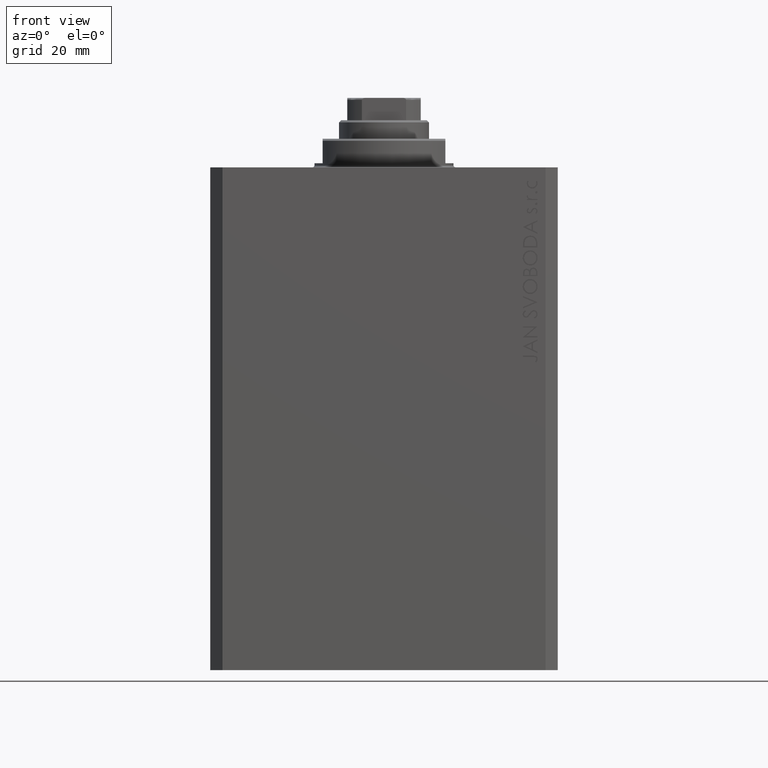
[diagram: clean part render]
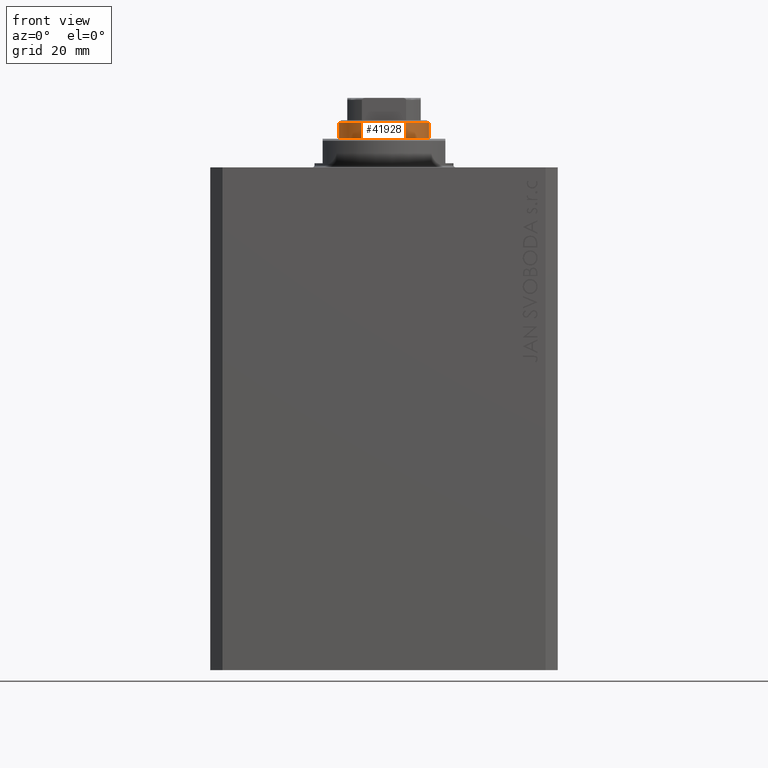
[diagram: same view with one face highlighted and labeled with its STEP entity id]
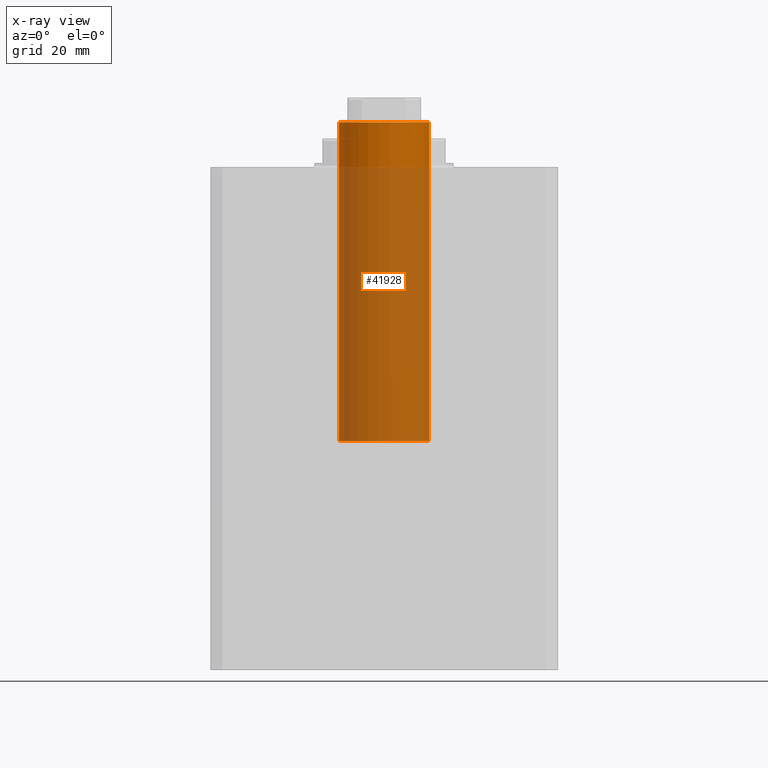
[diagram: x-ray of the same camera — body ghosted, the highlighted face saturated]
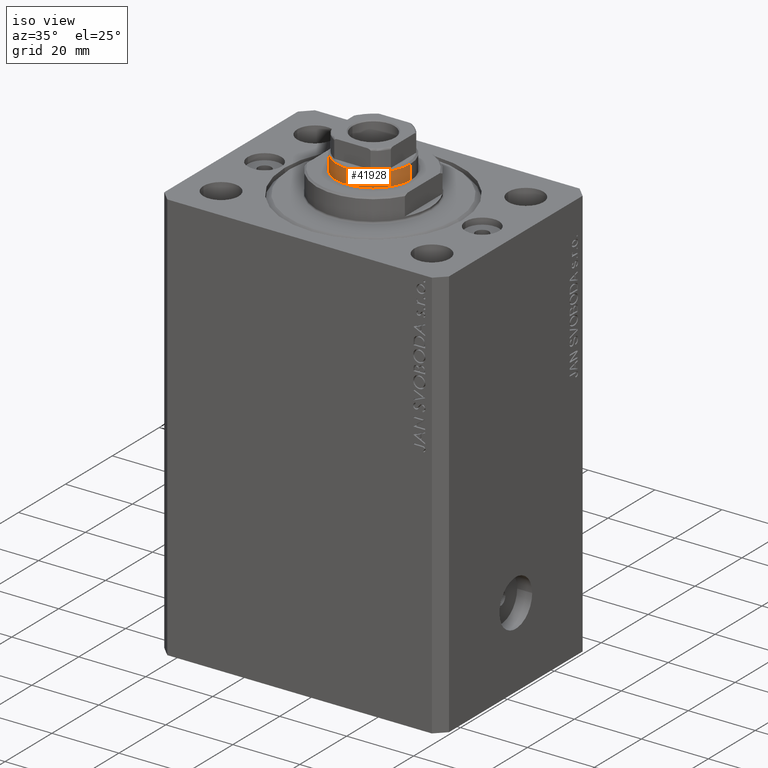
[diagram: same view with one face highlighted and labeled with its STEP entity id]
A machine part, front view. The second image highlights one B-rep face of the part: STEP entity #41928.
The next image is the same camera in x-ray: the body ghosted, the highlighted face saturated — about 86% of this face is hidden behind the body in this view.
A second angle (iso view) of the same face is appended — the face is thin or edge-on in the first view.
In plain terms, the highlighted cylindrical surface (partial cylindrical patch) has radius 11 mm, axis along (-0, -0, -1).
Its self-contained STEP definition (entity closure, byte-faithful):
#2008 = CARTESIAN_POINT ( 'NONE',  ( 0.000000000000000000, 0.000000000000000000, 44.60000000000000142 ) ) ;
#3057 = DIRECTION ( 'NONE',  ( -0.000000000000000000, -0.000000000000000000, -1.000000000000000000 ) ) ;
#3697 = CIRCLE ( 'NONE', #38007, 11.00000000000000000 ) ;
#4705 = VERTEX_POINT ( 'NONE', #31549 ) ;
#6179 = CARTESIAN_POINT ( 'NONE',  ( 0.000000000000000000, 0.000000000000000000, 122.6000000000000085 ) ) ;
#6353 = CIRCLE ( 'NONE', #45987, 11.00000000000000000 ) ;
#8524 = FACE_OUTER_BOUND ( 'NONE', #20812, .T. ) ;
#10214 = AXIS2_PLACEMENT_3D ( 'NONE', #36711, #44098, #11648 ) ;
#11648 = DIRECTION ( 'NONE',  ( -1.000000000000000000, 0.000000000000000000, 0.000000000000000000 ) ) ;
#11882 = CARTESIAN_POINT ( 'NONE',  ( 11.00000000000000000, 1.347111479062088405E-15, 44.60000000000000142 ) ) ;
#15760 = VERTEX_POINT ( 'NONE', #40101 ) ;
#17078 = EDGE_CURVE ( 'NONE', #4705, #15760, #3697, .T. ) ;
#17142 = VERTEX_POINT ( 'NONE', #11882 ) ;
#18097 = DIRECTION ( 'NONE',  ( 0.000000000000000000, 0.000000000000000000, -1.000000000000000000 ) ) ;
#20812 = EDGE_LOOP ( 'NONE', ( #26387, #24291, #36395, #47193 ) ) ;
#24291 = ORIENTED_EDGE ( 'NONE', *, *, #17078, .T. ) ;
#26387 = ORIENTED_EDGE ( 'NONE', *, *, #41058, .F. ) ;
#27561 = DIRECTION ( 'NONE',  ( 1.000000000000000000, 0.000000000000000000, 0.000000000000000000 ) ) ;
#29323 = CYLINDRICAL_SURFACE ( 'NONE', #10214, 11.00000000000000000 ) ;
#30047 = VECTOR ( 'NONE', #45882, 1000.000000000000000 ) ;
#30387 = LINE ( 'NONE', #34442, #30047 ) ;
#31150 = DIRECTION ( 'NONE',  ( 0.000000000000000000, 0.000000000000000000, 1.000000000000000000 ) ) ;
#31549 = CARTESIAN_POINT ( 'NONE',  ( 11.00000000000000000, 1.347111479062088405E-15, 122.6000000000000085 ) ) ;
#32670 = DIRECTION ( 'NONE',  ( 1.000000000000000000, 0.000000000000000000, 0.000000000000000000 ) ) ;
#34251 = CARTESIAN_POINT ( 'NONE',  ( -11.00000000000000000, 0.000000000000000000, 44.60000000000000142 ) ) ;
#34356 = VERTEX_POINT ( 'NONE', #34251 ) ;
#34442 = CARTESIAN_POINT ( 'NONE',  ( -11.00000000000000000, 0.000000000000000000, 123.0999999999999943 ) ) ;
#35760 = LINE ( 'NONE', #35997, #37649 ) ;
#35997 = CARTESIAN_POINT ( 'NONE',  ( 11.00000000000000000, 1.347111479062088405E-15, 123.0999999999999943 ) ) ;
#36395 = ORIENTED_EDGE ( 'NONE', *, *, #45620, .T. ) ;
#36711 = CARTESIAN_POINT ( 'NONE',  ( 0.000000000000000000, 0.000000000000000000, 123.0999999999999943 ) ) ;
#37649 = VECTOR ( 'NONE', #3057, 1000.000000000000000 ) ;
#38007 = AXIS2_PLACEMENT_3D ( 'NONE', #6179, #18097, #32670 ) ;
#40101 = CARTESIAN_POINT ( 'NONE',  ( -11.00000000000000000, 0.000000000000000000, 122.6000000000000085 ) ) ;
#41058 = EDGE_CURVE ( 'NONE', #4705, #17142, #35760, .T. ) ;
#41928 = ADVANCED_FACE ( 'NONE', ( #8524 ), #29323, .T. ) ;
#43208 = EDGE_CURVE ( 'NONE', #34356, #17142, #6353, .T. ) ;
#44098 = DIRECTION ( 'NONE',  ( -0.000000000000000000, -0.000000000000000000, -1.000000000000000000 ) ) ;
#45620 = EDGE_CURVE ( 'NONE', #15760, #34356, #30387, .T. ) ;
#45882 = DIRECTION ( 'NONE',  ( -0.000000000000000000, -0.000000000000000000, -1.000000000000000000 ) ) ;
#45987 = AXIS2_PLACEMENT_3D ( 'NONE', #2008, #31150, #27561 ) ;
#47193 = ORIENTED_EDGE ( 'NONE', *, *, #43208, .T. ) ;